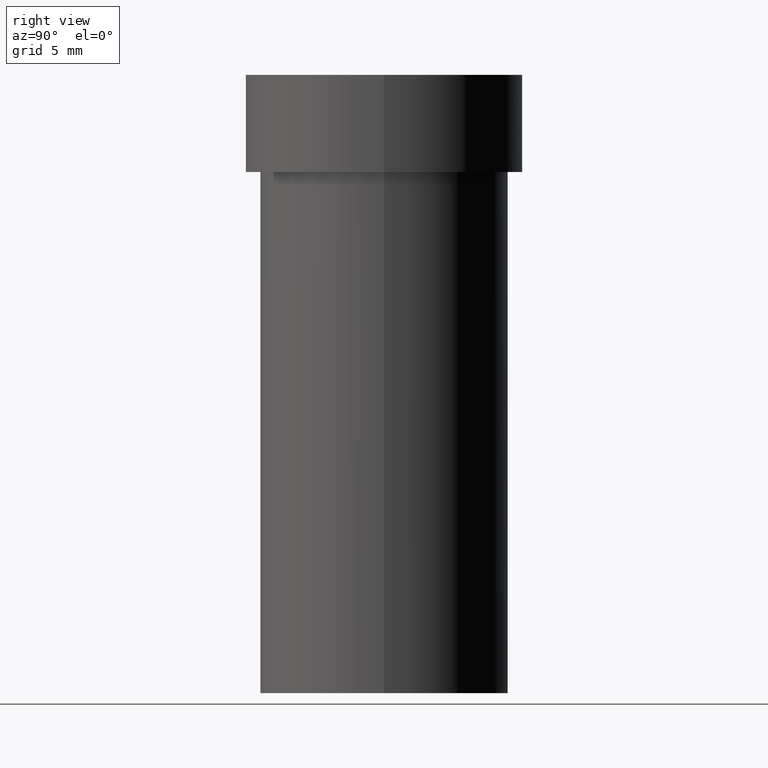
[diagram: clean part render]
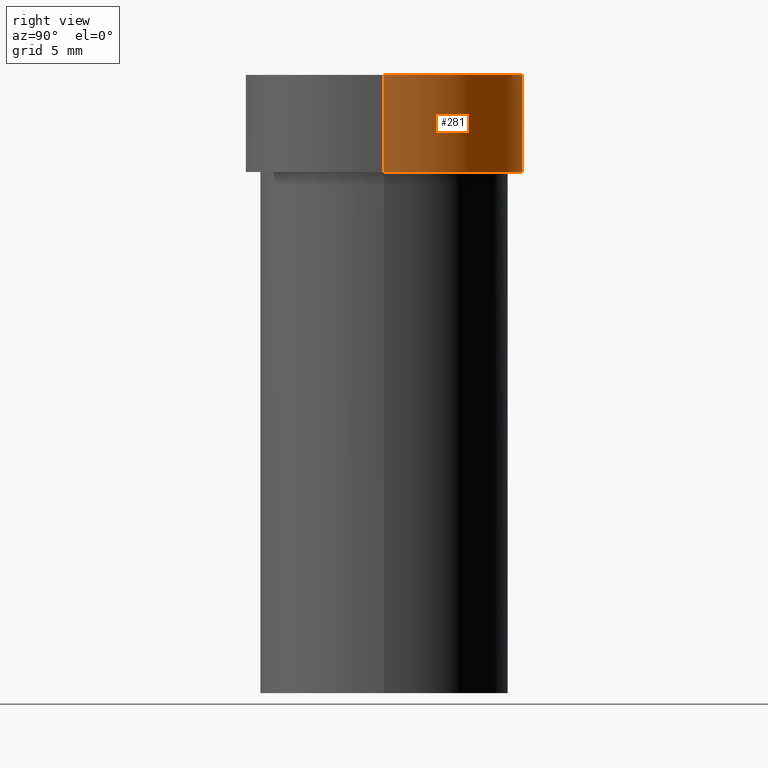
[diagram: same view with one face highlighted and labeled with its STEP entity id]
A machine part, right view. The second image highlights one B-rep face of the part: STEP entity #281.
In plain terms, the highlighted cylindrical surface (partial cylindrical patch) has radius 10 mm, axis along (0, -0, -1).
Its self-contained STEP definition (entity closure, byte-faithful):
#7 = AXIS2_PLACEMENT_3D ( 'NONE', #139, #283, #177 ) ;
#29 = CARTESIAN_POINT ( 'NONE',  ( 0.3937000000000000499, -2.753350281805299909E-15, -0.01499999999999999944 ) ) ;
#66 = DIRECTION ( 'NONE',  ( -1.000000000000000000, 6.982962677686265922E-15, 0.000000000000000000 ) ) ;
#69 = ORIENTED_EDGE ( 'NONE', *, *, #102, .T. ) ;
#85 = EDGE_CURVE ( 'NONE', #89, #465, #464, .T. ) ;
#89 = VERTEX_POINT ( 'NONE', #116 ) ;
#94 = AXIS2_PLACEMENT_3D ( 'NONE', #446, #127, #159 ) ;
#102 = EDGE_CURVE ( 'NONE', #89, #109, #206, .T. ) ;
#109 = VERTEX_POINT ( 'NONE', #138 ) ;
#114 = CARTESIAN_POINT ( 'NONE',  ( 3.668203209277705088E-31, -5.237222008264718399E-17, -0.01499999999999999944 ) ) ;
#116 = CARTESIAN_POINT ( 'NONE',  ( -0.3936999999999999389, 3.711672783926467705E-15, 0.2618561992778351555 ) ) ;
#117 = CARTESIAN_POINT ( 'NONE',  ( -0.3937000000000000499, 2.696820186122435743E-15, -0.01499999999999999944 ) ) ;
#127 = DIRECTION ( 'NONE',  ( 2.445468806185136597E-29, -3.491481338843145583E-15, -1.000000000000000000 ) ) ;
#138 = CARTESIAN_POINT ( 'NONE',  ( 0.3936999999999999389, -1.834926372966129509E-15, 0.2618561992778351555 ) ) ;
#139 = CARTESIAN_POINT ( 'NONE',  ( -6.403611670401447787E-30, 9.142660332389533129E-16, 0.2618561992778351555 ) ) ;
#142 = ORIENTED_EDGE ( 'NONE', *, *, #85, .F. ) ;
#148 = DIRECTION ( 'NONE',  ( 2.445468806185136597E-29, -3.491481338843145583E-15, -1.000000000000000000 ) ) ;
#159 = DIRECTION ( 'NONE',  ( -1.000000000000000000, 6.982962677686266711E-15, -4.876176775795935793E-29 ) ) ;
#177 = DIRECTION ( 'NONE',  ( -1.000000000000000000, 6.982962677686266711E-15, 0.000000000000000000 ) ) ;
#182 = EDGE_CURVE ( 'NONE', #465, #425, #463, .T. ) ;
#187 = LINE ( 'NONE', #437, #309 ) ;
#206 = CIRCLE ( 'NONE', #7, 0.3936999999999999389 ) ;
#209 = ORIENTED_EDGE ( 'NONE', *, *, #182, .F. ) ;
#281 = ADVANCED_FACE ( 'NONE', ( #337 ), #379, .T. ) ;
#283 = DIRECTION ( 'NONE',  ( 2.445468806185136597E-29, -3.491481338843145583E-15, -1.000000000000000000 ) ) ;
#295 = ORIENTED_EDGE ( 'NONE', *, *, #454, .T. ) ;
#309 = VECTOR ( 'NONE', #338, 39.37007874015748143 ) ;
#320 = DIRECTION ( 'NONE',  ( 2.445468806185136877E-29, -3.491481338843145188E-15, -1.000000000000000000 ) ) ;
#328 = CARTESIAN_POINT ( 'NONE',  ( -0.3936999999999999389, 2.749192406205082822E-15, -1.919750796630859611E-29 ) ) ;
#337 = FACE_OUTER_BOUND ( 'NONE', #414, .T. ) ;
#338 = DIRECTION ( 'NONE',  ( 2.445468806185136877E-29, -3.491481338843145188E-15, -1.000000000000000000 ) ) ;
#379 = CYLINDRICAL_SURFACE ( 'NONE', #94, 0.3936999999999999389 ) ;
#410 = VECTOR ( 'NONE', #320, 39.37007874015748143 ) ;
#414 = EDGE_LOOP ( 'NONE', ( #69, #295, #209, #142 ) ) ;
#425 = VERTEX_POINT ( 'NONE', #29 ) ;
#437 = CARTESIAN_POINT ( 'NONE',  ( 0.3936999999999999389, -2.700978061722651647E-15, 1.902916848228363047E-29 ) ) ;
#446 = CARTESIAN_POINT ( 'NONE',  ( 0.000000000000000000, 0.000000000000000000, 0.000000000000000000 ) ) ;
#452 = AXIS2_PLACEMENT_3D ( 'NONE', #114, #148, #66 ) ;
#454 = EDGE_CURVE ( 'NONE', #109, #425, #187, .T. ) ;
#463 = CIRCLE ( 'NONE', #452, 0.3937000000000000499 ) ;
#464 = LINE ( 'NONE', #328, #410 ) ;
#465 = VERTEX_POINT ( 'NONE', #117 ) ;